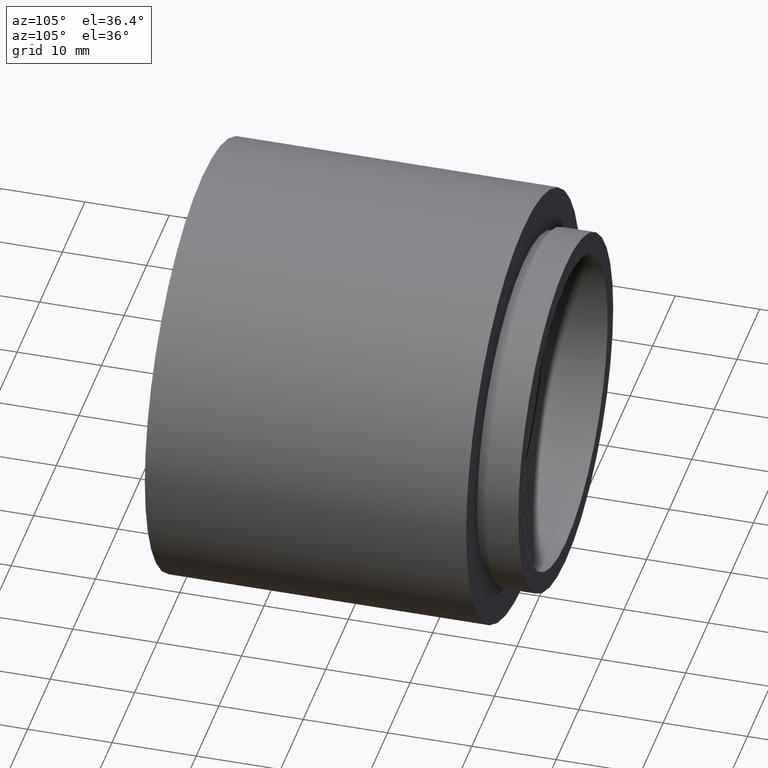
[diagram: clean part render]
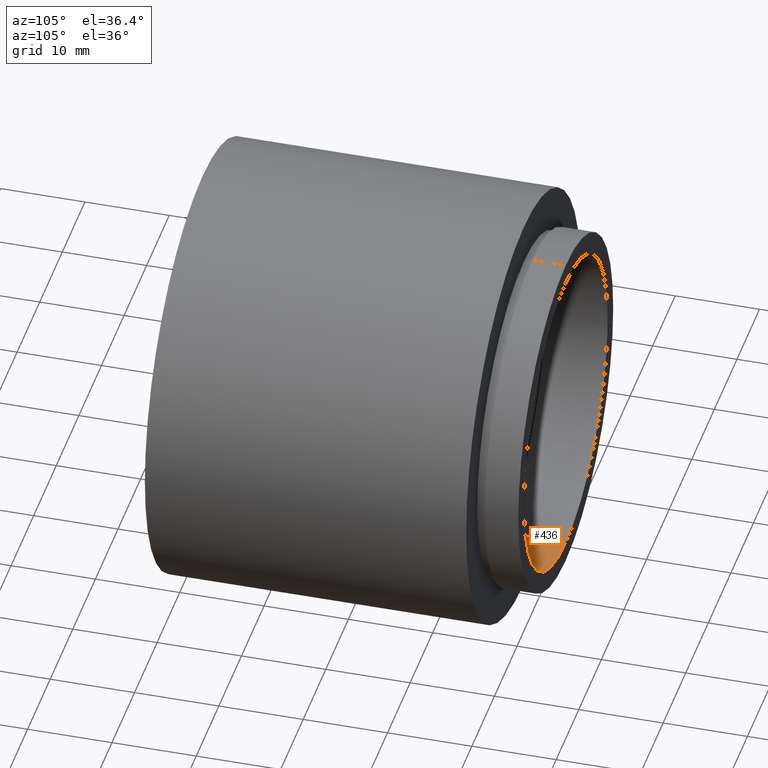
[diagram: same view with one face highlighted and labeled with its STEP entity id]
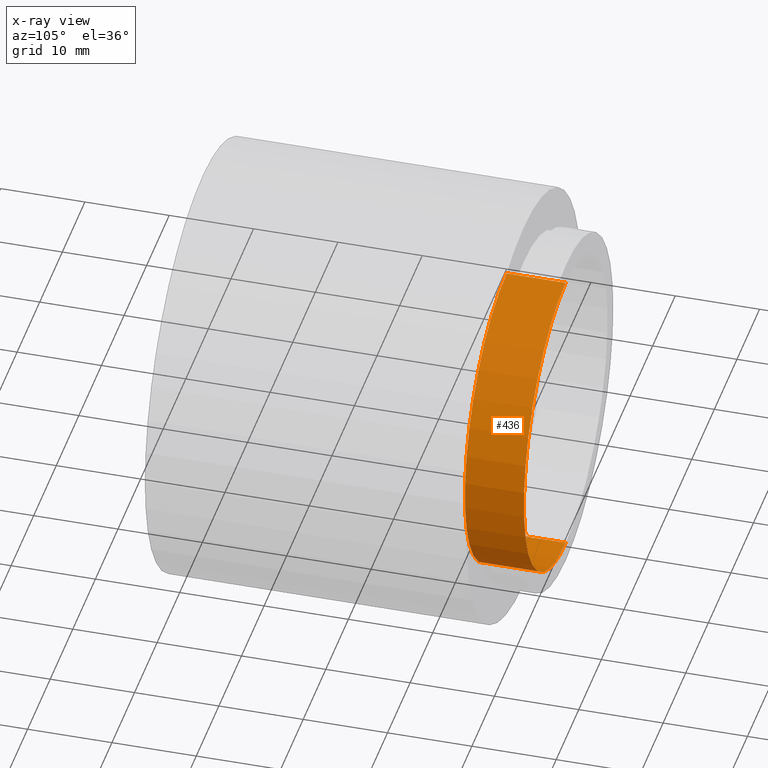
[diagram: x-ray of the same camera — body ghosted, the highlighted face saturated]
A machine part, auxiliary view. The second image highlights one B-rep face of the part: STEP entity #436.
The next image is the same camera in x-ray: the body ghosted, the highlighted face saturated — about 0% of this face is hidden behind the body in this view.
In plain terms, the highlighted cylindrical surface (partial cylindrical patch) has radius 18.5 mm, axis along (-0, 1, -0).
Its self-contained STEP definition (entity closure, byte-faithful):
#5 = ORIENTED_EDGE ( 'NONE', *, *, #215, .F. ) ;
#6 = CARTESIAN_POINT ( 'NONE',  ( 0.0000000000000000000, 43.09999999999998700, 18.50000000000001400 ) ) ;
#33 = CARTESIAN_POINT ( 'NONE',  ( 2.265596578422605000E-015, 43.09999999999998700, -18.50000000000001400 ) ) ;
#52 = CARTESIAN_POINT ( 'NONE',  ( 2.265596578422605000E-015, 161.3761669434274500, -18.50000000000001400 ) ) ;
#67 = DIRECTION ( 'NONE',  ( -0.0000000000000000000, 1.000000000000000000, -0.0000000000000000000 ) ) ;
#84 = DIRECTION ( 'NONE',  ( 0.0000000000000000000, 0.0000000000000000000, 1.000000000000000000 ) ) ;
#95 = VECTOR ( 'NONE', #106, 1000.000000000000000 ) ;
#106 = DIRECTION ( 'NONE',  ( -0.0000000000000000000, 1.000000000000000000, -0.0000000000000000000 ) ) ;
#116 = CARTESIAN_POINT ( 'NONE',  ( 2.265596578422605000E-015, 36.09999999999999400, -18.50000000000001400 ) ) ;
#135 = AXIS2_PLACEMENT_3D ( 'NONE', #435, #140, #490 ) ;
#140 = DIRECTION ( 'NONE',  ( -0.0000000000000000000, 1.000000000000000000, -0.0000000000000000000 ) ) ;
#145 = AXIS2_PLACEMENT_3D ( 'NONE', #354, #67, #505 ) ;
#159 = VERTEX_POINT ( 'NONE', #33 ) ;
#171 = EDGE_CURVE ( 'NONE', #298, #266, #386, .T. ) ;
#178 = CIRCLE ( 'NONE', #428, 18.50000000000001400 ) ;
#215 = EDGE_CURVE ( 'NONE', #298, #477, #464, .T. ) ;
#232 = CARTESIAN_POINT ( 'NONE',  ( 0.0000000000000000000, 161.3761669434274500, 18.50000000000001400 ) ) ;
#266 = VERTEX_POINT ( 'NONE', #6 ) ;
#286 = CARTESIAN_POINT ( 'NONE',  ( 0.0000000000000000000, 43.09999999999998700, 0.0000000000000000000 ) ) ;
#298 = VERTEX_POINT ( 'NONE', #591 ) ;
#314 = EDGE_CURVE ( 'NONE', #477, #159, #463, .T. ) ;
#323 = CYLINDRICAL_SURFACE ( 'NONE', #145, 18.50000000000001400 ) ;
#329 = ORIENTED_EDGE ( 'NONE', *, *, #171, .T. ) ;
#354 = CARTESIAN_POINT ( 'NONE',  ( 0.0000000000000000000, 161.3761669434274500, 0.0000000000000000000 ) ) ;
#362 = ORIENTED_EDGE ( 'NONE', *, *, #314, .F. ) ;
#372 = DIRECTION ( 'NONE',  ( -0.0000000000000000000, 1.000000000000000000, -0.0000000000000000000 ) ) ;
#386 = LINE ( 'NONE', #232, #447 ) ;
#401 = ORIENTED_EDGE ( 'NONE', *, *, #551, .T. ) ;
#428 = AXIS2_PLACEMENT_3D ( 'NONE', #286, #372, #84 ) ;
#435 = CARTESIAN_POINT ( 'NONE',  ( 0.0000000000000000000, 36.09999999999999400, 0.0000000000000000000 ) ) ;
#436 = ADVANCED_FACE ( 'NONE', ( #526 ), #323, .F. ) ;
#447 = VECTOR ( 'NONE', #487, 1000.000000000000000 ) ;
#463 = LINE ( 'NONE', #52, #95 ) ;
#464 = CIRCLE ( 'NONE', #135, 18.50000000000001400 ) ;
#477 = VERTEX_POINT ( 'NONE', #116 ) ;
#487 = DIRECTION ( 'NONE',  ( -0.0000000000000000000, 1.000000000000000000, -0.0000000000000000000 ) ) ;
#490 = DIRECTION ( 'NONE',  ( 0.0000000000000000000, 0.0000000000000000000, 1.000000000000000000 ) ) ;
#503 = EDGE_LOOP ( 'NONE', ( #362, #5, #329, #401 ) ) ;
#505 = DIRECTION ( 'NONE',  ( 0.0000000000000000000, 0.0000000000000000000, 1.000000000000000000 ) ) ;
#526 = FACE_OUTER_BOUND ( 'NONE', #503, .T. ) ;
#551 = EDGE_CURVE ( 'NONE', #266, #159, #178, .T. ) ;
#591 = CARTESIAN_POINT ( 'NONE',  ( 0.0000000000000000000, 36.09999999999999400, 18.50000000000001400 ) ) ;